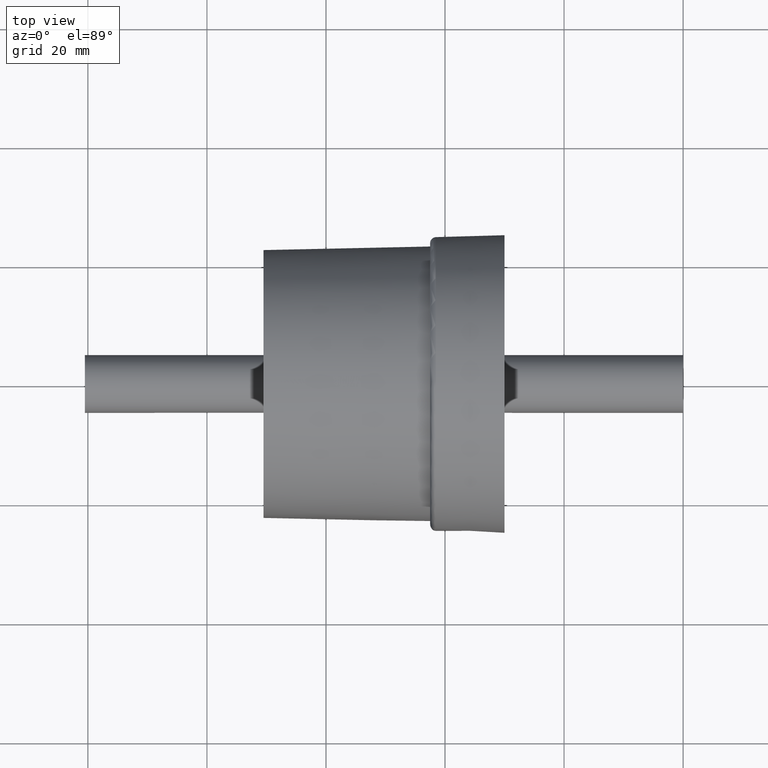
[diagram: clean part render]
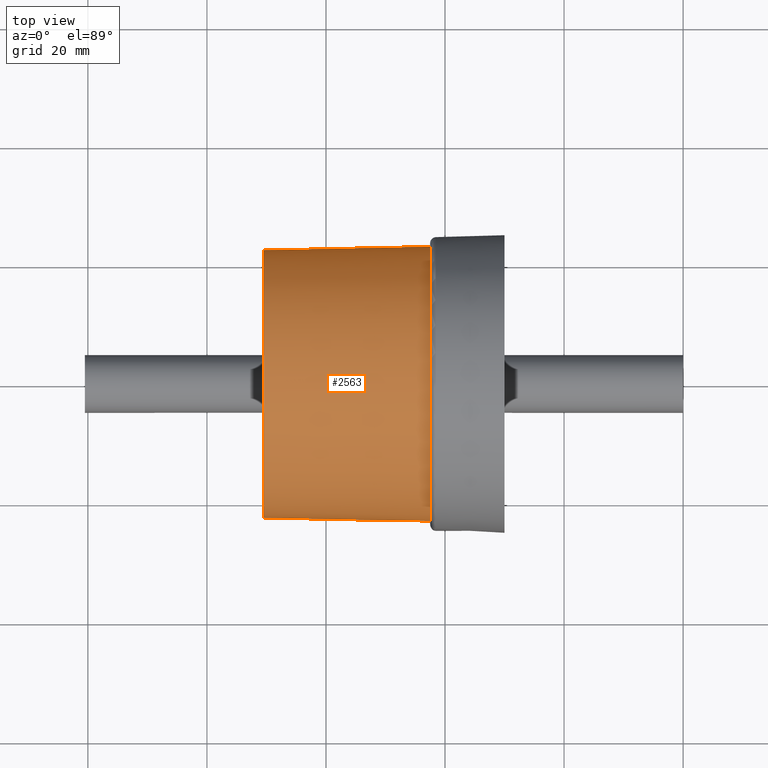
[diagram: same view with one face highlighted and labeled with its STEP entity id]
A machine part, top view. The second image highlights one B-rep face of the part: STEP entity #2563.
In plain terms, the highlighted conical surface has half-angle 1.228 deg.
Its self-contained STEP definition (entity closure, byte-faithful):
#524=CONICAL_SURFACE('',#2842,22.8,1.22757883213454);
#653=FACE_BOUND('',#997,.T.);
#805=FACE_OUTER_BOUND('',#996,.T.);
#996=EDGE_LOOP('',(#2405));
#997=EDGE_LOOP('',(#2406));
#1006=CIRCLE('',#2574,23.1);
#1126=CIRCLE('',#2840,22.5);
#1131=VERTEX_POINT('',#3640);
#1363=VERTEX_POINT('',#4362);
#1368=EDGE_CURVE('',#1131,#1131,#1006,.T.);
#1712=EDGE_CURVE('',#1363,#1363,#1126,.T.);
#2405=ORIENTED_EDGE('',*,*,#1712,.T.);
#2406=ORIENTED_EDGE('',*,*,#1368,.F.);
#2563=ADVANCED_FACE('',(#805,#653),#524,.T.);
#2574=AXIS2_PLACEMENT_3D('',#3641,#2859,#2860);
#2840=AXIS2_PLACEMENT_3D('',#4363,#3615,#3616);
#2842=AXIS2_PLACEMENT_3D('',#4365,#3619,#3620);
#2859=DIRECTION('center_axis',(1.,1.83697019872103E-16,0.));
#2860=DIRECTION('ref_axis',(0.,0.,-1.));
#3615=DIRECTION('center_axis',(1.,1.83697019872103E-16,0.));
#3616=DIRECTION('ref_axis',(0.,0.,-1.));
#3619=DIRECTION('center_axis',(1.,1.83697019872103E-16,0.));
#3620=DIRECTION('ref_axis',(0.,1.,0.));
#3640=CARTESIAN_POINT('',(-42.5,23.1,0.));
#3641=CARTESIAN_POINT('Origin',(-42.5,-7.80712334456438E-15,0.));
#4362=CARTESIAN_POINT('',(-70.5,22.5,0.));
#4363=CARTESIAN_POINT('Origin',(-70.5,-1.29506399009833E-14,0.));
#4365=CARTESIAN_POINT('Origin',(-56.5,-1.03788816227738E-14,0.));